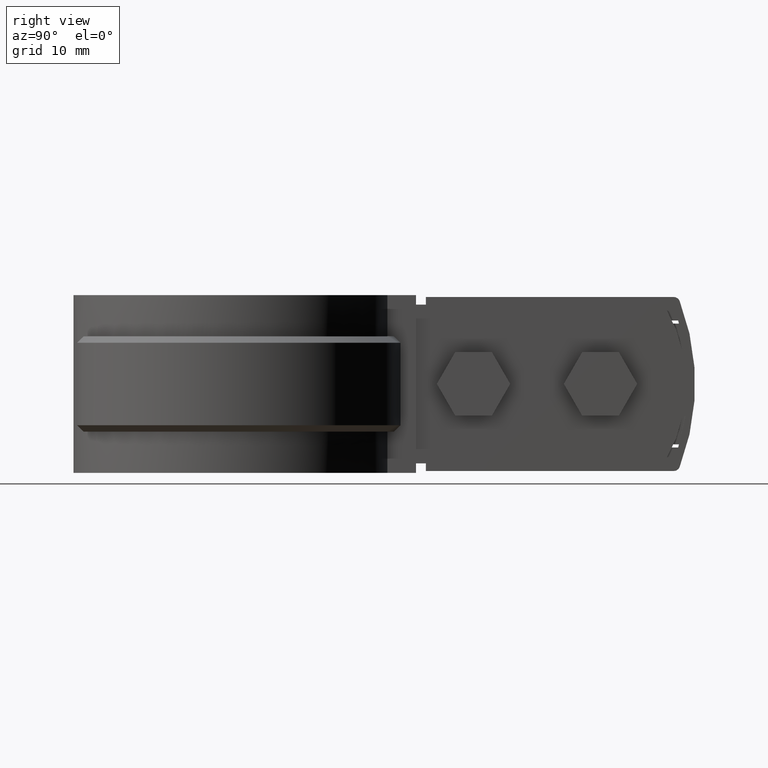
[diagram: clean part render]
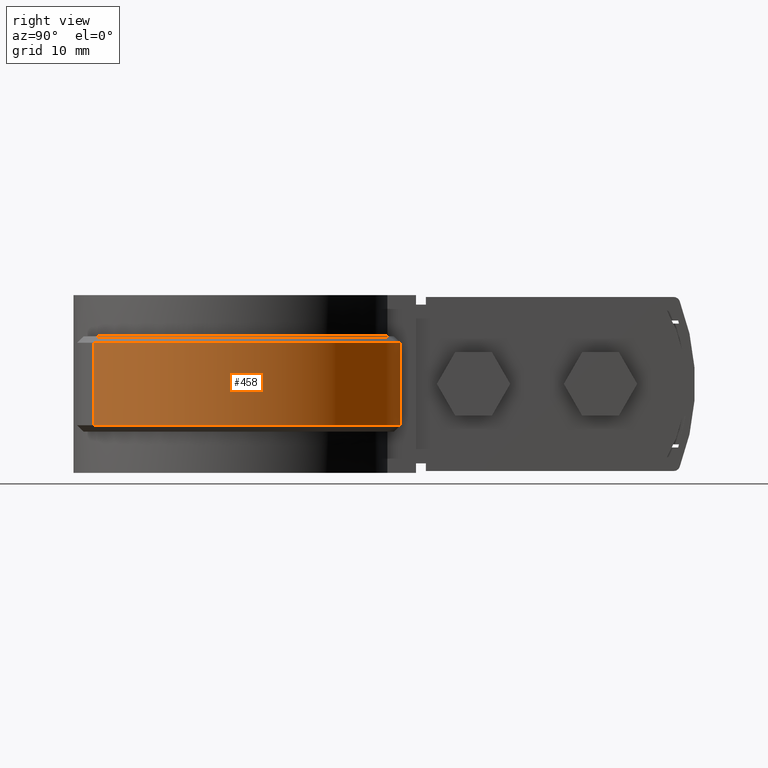
[diagram: same view with one face highlighted and labeled with its STEP entity id]
A machine part, right view. The second image highlights one B-rep face of the part: STEP entity #458.
In plain terms, the highlighted cylindrical surface (partial cylindrical patch) has radius 27.095 mm, axis along (0, 0, 1).
Its self-contained STEP definition (entity closure, byte-faithful):
#458 = ADVANCED_FACE( '', ( #911 ), #912, .T. );
#911 = FACE_OUTER_BOUND( '', #1987, .T. );
#912 = CYLINDRICAL_SURFACE( '', #1988, 27.0950000000000 );
#1987 = EDGE_LOOP( '', ( #4603, #4604, #4605, #4606 ) );
#1988 = AXIS2_PLACEMENT_3D( '', #4607, #4608, #4609 );
#4603 = ORIENTED_EDGE( '', *, *, #6906, .T. );
#4604 = ORIENTED_EDGE( '', *, *, #6907, .T. );
#4605 = ORIENTED_EDGE( '', *, *, #6908, .F. );
#4606 = ORIENTED_EDGE( '', *, *, #6909, .T. );
#4607 = CARTESIAN_POINT( '', ( 0.000000000000000, 3.46944695195361E-015, -20.0000000000000 ) );
#4608 = DIRECTION( '', ( 0.000000000000000, 0.000000000000000, 1.00000000000000 ) );
#4609 = DIRECTION( '', ( 0.209705966713379, 0.977764494919307, 0.000000000000000 ) );
#6906 = EDGE_CURVE( '', #8055, #8056, #8057, .F. );
#6907 = EDGE_CURVE( '', #8056, #8058, #8059, .T. );
#6908 = EDGE_CURVE( '', #8060, #8058, #8061, .T. );
#6909 = EDGE_CURVE( '', #8060, #8055, #8062, .T. );
#8055 = VERTEX_POINT( '', #11318 );
#8056 = VERTEX_POINT( '', #11319 );
#8057 = LINE( '', #11320, #11321 );
#8058 = VERTEX_POINT( '', #11322 );
#8059 = CIRCLE( '', #11323, 27.0950000000000 );
#8060 = VERTEX_POINT( '', #11324 );
#8061 = LINE( '', #11325, #11326 );
#8062 = CIRCLE( '', #11327, 27.0950000000000 );
#11318 = CARTESIAN_POINT( '', ( 6.09999999999998, 26.3994133457545, -19.0000000000000 ) );
#11319 = CARTESIAN_POINT( '', ( 6.09999999999998, 26.3994133457545, -6.00000000000000 ) );
#11320 = CARTESIAN_POINT( '', ( 6.09999999999998, 26.3994133457545, -20.0000000000000 ) );
#11321 = VECTOR( '', #13189, 1000.00000000000 );
#11322 = CARTESIAN_POINT( '', ( 15.8725259722264, -21.9590970729900, -6.00000000000000 ) );
#11323 = AXIS2_PLACEMENT_3D( '', #13190, #13191, #13192 );
#11324 = CARTESIAN_POINT( '', ( 15.8725259722264, -21.9590970729900, -19.0000000000000 ) );
#11325 = CARTESIAN_POINT( '', ( 15.8725259722264, -21.9590970729900, -20.0000000000000 ) );
#11326 = VECTOR( '', #13193, 1000.00000000000 );
#11327 = AXIS2_PLACEMENT_3D( '', #13194, #13195, #13196 );
#13189 = DIRECTION( '', ( 0.000000000000000, 0.000000000000000, -1.00000000000000 ) );
#13190 = CARTESIAN_POINT( '', ( 0.000000000000000, 3.46944695195361E-015, -6.00000000000000 ) );
#13191 = DIRECTION( '', ( 0.000000000000000, 0.000000000000000, -1.00000000000000 ) );
#13192 = DIRECTION( '', ( -1.00000000000000, 0.000000000000000, 0.000000000000000 ) );
#13193 = DIRECTION( '', ( 0.000000000000000, 0.000000000000000, 1.00000000000000 ) );
#13194 = CARTESIAN_POINT( '', ( 0.000000000000000, 3.46944695195361E-015, -19.0000000000000 ) );
#13195 = DIRECTION( '', ( 0.000000000000000, 0.000000000000000, 1.00000000000000 ) );
#13196 = DIRECTION( '', ( 1.00000000000000, 0.000000000000000, 0.000000000000000 ) );